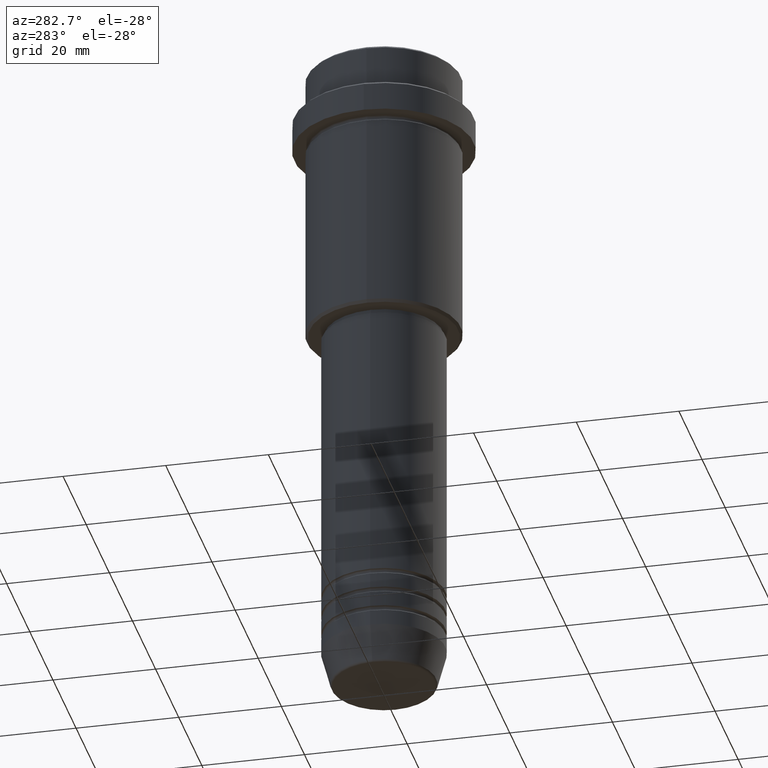
[diagram: clean part render]
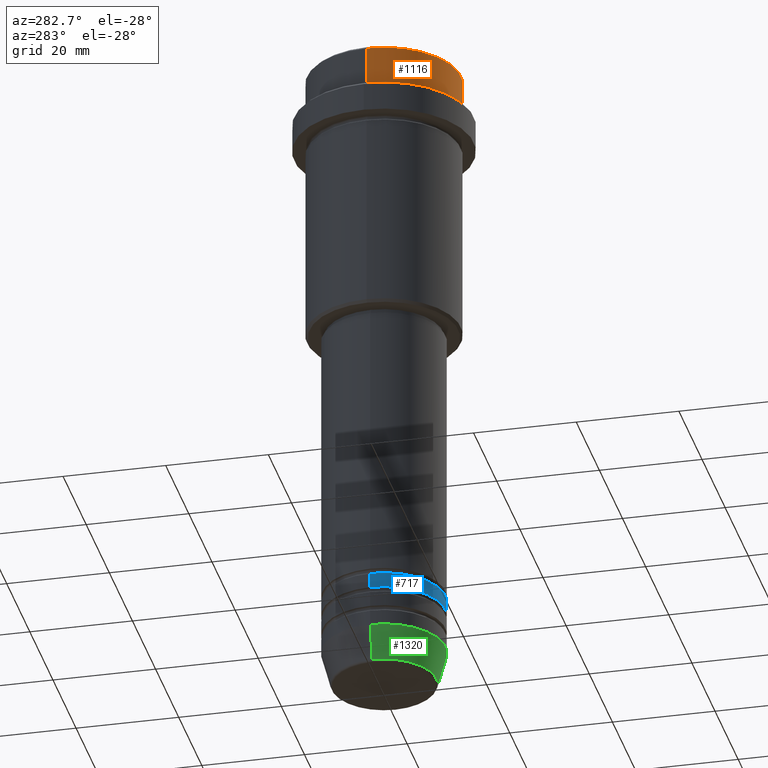
[diagram: same view with three faces highlighted in distinct colors, each labeled with its STEP entity id]
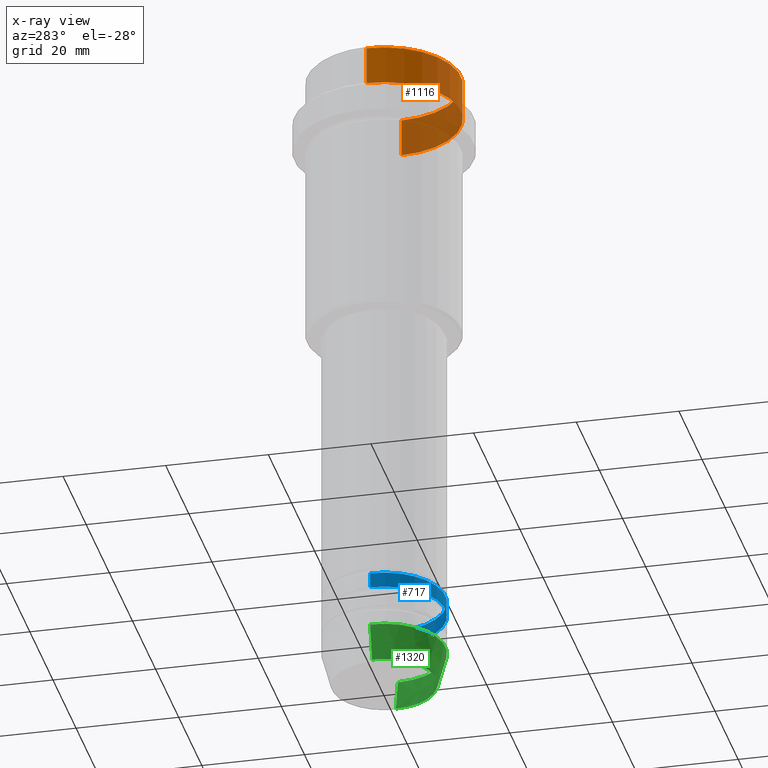
[diagram: x-ray of the same camera — body ghosted, the three highlighted faces saturated]
A machine part, auxiliary view with three faces highlighted in distinct colors.
The next image is the same camera in x-ray (body ghosted, the three faces saturated) — at least one of them is partly hidden behind the body in this view.
Their STEP definitions:

[orange] entity #1116 — the highlighted cylindrical surface (partial cylindrical patch) has radius 15 mm, axis along (-0, -0, 1).
#64 = DIRECTION ( 'NONE',  ( -0.000000000000000000, -0.000000000000000000, 1.000000000000000000 ) ) ;
#150 = ORIENTED_EDGE ( 'NONE', *, *, #645, .T. ) ;
#163 = CARTESIAN_POINT ( 'NONE',  ( -15.00000000000000000, 1.836970198721029589E-15, -7.999999999999998224 ) ) ;
#251 = CARTESIAN_POINT ( 'NONE',  ( 15.00000000000000000, 0.000000000000000000, -0.5000000000000386358 ) ) ;
#288 = DIRECTION ( 'NONE',  ( 1.000000000000000000, 0.000000000000000000, 0.000000000000000000 ) ) ;
#294 = VECTOR ( 'NONE', #64, 1000.000000000000000 ) ;
#297 = CARTESIAN_POINT ( 'NONE',  ( -15.00000000000000000, 1.836970198721029589E-15, 0.000000000000000000 ) ) ;
#307 = EDGE_CURVE ( 'NONE', #841, #737, #818, .T. ) ;
#315 = ORIENTED_EDGE ( 'NONE', *, *, #1353, .T. ) ;
#368 = EDGE_CURVE ( 'NONE', #841, #636, #949, .T. ) ;
#398 = AXIS2_PLACEMENT_3D ( 'NONE', #1254, #1260, #288 ) ;
#486 = VERTEX_POINT ( 'NONE', #251 ) ;
#554 = EDGE_LOOP ( 'NONE', ( #567, #665, #150, #315 ) ) ;
#567 = ORIENTED_EDGE ( 'NONE', *, *, #368, .F. ) ;
#636 = VERTEX_POINT ( 'NONE', #1160 ) ;
#645 = EDGE_CURVE ( 'NONE', #737, #486, #1314, .T. ) ;
#663 = DIRECTION ( 'NONE',  ( 1.000000000000000000, 0.000000000000000000, 0.000000000000000000 ) ) ;
#665 = ORIENTED_EDGE ( 'NONE', *, *, #307, .T. ) ;
#682 = CARTESIAN_POINT ( 'NONE',  ( 0.000000000000000000, 0.000000000000000000, -7.999999999999998224 ) ) ;
#688 = FACE_OUTER_BOUND ( 'NONE', #554, .T. ) ;
#689 = DIRECTION ( 'NONE',  ( -0.000000000000000000, -0.000000000000000000, 1.000000000000000000 ) ) ;
#737 = VERTEX_POINT ( 'NONE', #1021 ) ;
#763 = DIRECTION ( 'NONE',  ( -0.000000000000000000, -0.000000000000000000, 1.000000000000000000 ) ) ;
#818 = CIRCLE ( 'NONE', #903, 15.00000000000000000 ) ;
#841 = VERTEX_POINT ( 'NONE', #163 ) ;
#874 = CIRCLE ( 'NONE', #398, 15.00000000000000000 ) ;
#875 = DIRECTION ( 'NONE',  ( -0.000000000000000000, -0.000000000000000000, 1.000000000000000000 ) ) ;
#903 = AXIS2_PLACEMENT_3D ( 'NONE', #682, #689, #1117 ) ;
#949 = LINE ( 'NONE', #297, #294 ) ;
#1011 = VECTOR ( 'NONE', #875, 1000.000000000000000 ) ;
#1021 = CARTESIAN_POINT ( 'NONE',  ( 15.00000000000000000, 0.000000000000000000, -7.999999999999998224 ) ) ;
#1114 = CARTESIAN_POINT ( 'NONE',  ( 0.000000000000000000, 0.000000000000000000, 0.000000000000000000 ) ) ;
#1116 = ADVANCED_FACE ( 'NONE', ( #688 ), #1202, .T. ) ;
#1117 = DIRECTION ( 'NONE',  ( 1.000000000000000000, 0.000000000000000000, 0.000000000000000000 ) ) ;
#1160 = CARTESIAN_POINT ( 'NONE',  ( -15.00000000000000000, 1.836970198721029589E-15, -0.5000000000000386358 ) ) ;
#1202 = CYLINDRICAL_SURFACE ( 'NONE', #1382, 15.00000000000000000 ) ;
#1212 = CARTESIAN_POINT ( 'NONE',  ( 15.00000000000000000, 0.000000000000000000, 0.000000000000000000 ) ) ;
#1254 = CARTESIAN_POINT ( 'NONE',  ( 0.000000000000000000, 0.000000000000000000, -0.5000000000000386358 ) ) ;
#1260 = DIRECTION ( 'NONE',  ( 0.000000000000000000, 0.000000000000000000, -1.000000000000000000 ) ) ;
#1314 = LINE ( 'NONE', #1212, #1011 ) ;
#1353 = EDGE_CURVE ( 'NONE', #486, #636, #874, .T. ) ;
#1382 = AXIS2_PLACEMENT_3D ( 'NONE', #1114, #763, #663 ) ;

[blue] entity #717 — the highlighted cylindrical surface (partial cylindrical patch) has radius 12 mm, axis along (-0, -0, 1).
#58 = AXIS2_PLACEMENT_3D ( 'NONE', #777, #905, #63 ) ;
#63 = DIRECTION ( 'NONE',  ( 1.000000000000000000, 0.000000000000000000, 0.000000000000000000 ) ) ;
#165 = EDGE_CURVE ( 'NONE', #835, #268, #320, .T. ) ;
#194 = ORIENTED_EDGE ( 'NONE', *, *, #1401, .T. ) ;
#238 = ORIENTED_EDGE ( 'NONE', *, *, #1249, .F. ) ;
#261 = CARTESIAN_POINT ( 'NONE',  ( 12.00000000000000000, 0.000000000000000000, -111.9999999999998721 ) ) ;
#268 = VERTEX_POINT ( 'NONE', #261 ) ;
#320 = LINE ( 'NONE', #987, #481 ) ;
#328 = ORIENTED_EDGE ( 'NONE', *, *, #165, .T. ) ;
#333 = DIRECTION ( 'NONE',  ( -0.000000000000000000, -0.000000000000000000, 1.000000000000000000 ) ) ;
#340 = VERTEX_POINT ( 'NONE', #1050 ) ;
#373 = ORIENTED_EDGE ( 'NONE', *, *, #424, .F. ) ;
#406 = DIRECTION ( 'NONE',  ( -0.000000000000000000, -0.000000000000000000, 1.000000000000000000 ) ) ;
#416 = EDGE_LOOP ( 'NONE', ( #238, #194, #328, #373 ) ) ;
#424 = EDGE_CURVE ( 'NONE', #340, #268, #856, .T. ) ;
#449 = CYLINDRICAL_SURFACE ( 'NONE', #58, 12.00000000000000000 ) ;
#481 = VECTOR ( 'NONE', #1185, 1000.000000000000000 ) ;
#517 = CARTESIAN_POINT ( 'NONE',  ( -12.00000000000000000, 1.469576158976823947E-15, 0.000000000000000000 ) ) ;
#555 = FACE_OUTER_BOUND ( 'NONE', #416, .T. ) ;
#568 = AXIS2_PLACEMENT_3D ( 'NONE', #1378, #406, #1268 ) ;
#654 = AXIS2_PLACEMENT_3D ( 'NONE', #1071, #333, #664 ) ;
#664 = DIRECTION ( 'NONE',  ( 1.000000000000000000, 0.000000000000000000, 0.000000000000000000 ) ) ;
#717 = ADVANCED_FACE ( 'NONE', ( #555 ), #449, .T. ) ;
#725 = LINE ( 'NONE', #517, #741 ) ;
#741 = VECTOR ( 'NONE', #948, 1000.000000000000000 ) ;
#777 = CARTESIAN_POINT ( 'NONE',  ( 0.000000000000000000, 0.000000000000000000, 0.000000000000000000 ) ) ;
#835 = VERTEX_POINT ( 'NONE', #1151 ) ;
#856 = CIRCLE ( 'NONE', #568, 12.00000000000000000 ) ;
#905 = DIRECTION ( 'NONE',  ( -0.000000000000000000, -0.000000000000000000, 1.000000000000000000 ) ) ;
#948 = DIRECTION ( 'NONE',  ( -0.000000000000000000, -0.000000000000000000, 1.000000000000000000 ) ) ;
#987 = CARTESIAN_POINT ( 'NONE',  ( 12.00000000000000000, 0.000000000000000000, 0.000000000000000000 ) ) ;
#1050 = CARTESIAN_POINT ( 'NONE',  ( -12.00000000000000000, 1.469576158976823947E-15, -111.9999999999998721 ) ) ;
#1071 = CARTESIAN_POINT ( 'NONE',  ( 0.000000000000000000, 0.000000000000000000, -114.9999999999998863 ) ) ;
#1151 = CARTESIAN_POINT ( 'NONE',  ( 12.00000000000000000, 0.000000000000000000, -114.9999999999998863 ) ) ;
#1163 = VERTEX_POINT ( 'NONE', #1287 ) ;
#1185 = DIRECTION ( 'NONE',  ( -0.000000000000000000, -0.000000000000000000, 1.000000000000000000 ) ) ;
#1216 = CIRCLE ( 'NONE', #654, 12.00000000000000000 ) ;
#1249 = EDGE_CURVE ( 'NONE', #1163, #340, #725, .T. ) ;
#1268 = DIRECTION ( 'NONE',  ( 1.000000000000000000, 0.000000000000000000, 0.000000000000000000 ) ) ;
#1287 = CARTESIAN_POINT ( 'NONE',  ( -12.00000000000000000, 1.469576158976823947E-15, -114.9999999999998863 ) ) ;
#1378 = CARTESIAN_POINT ( 'NONE',  ( 0.000000000000000000, 0.000000000000000000, -111.9999999999998721 ) ) ;
#1401 = EDGE_CURVE ( 'NONE', #1163, #835, #1216, .T. ) ;

[green] entity #1320 — the highlighted conical surface has half-angle 15 deg.
#1 = DIRECTION ( 'NONE',  ( -0.000000000000000000, -0.000000000000000000, 1.000000000000000000 ) ) ;
#51 = VERTEX_POINT ( 'NONE', #957 ) ;
#143 = DIRECTION ( 'NONE',  ( 1.000000000000000000, 0.000000000000000000, 0.000000000000000000 ) ) ;
#218 = ORIENTED_EDGE ( 'NONE', *, *, #466, .T. ) ;
#314 = CARTESIAN_POINT ( 'NONE',  ( 0.000000000000000000, 0.000000000000000000, -129.6294095225512422 ) ) ;
#319 = CARTESIAN_POINT ( 'NONE',  ( 10.22365507213718949, 0.000000000000000000, -129.6294095225512422 ) ) ;
#361 = DIRECTION ( 'NONE',  ( -0.000000000000000000, -0.000000000000000000, 1.000000000000000000 ) ) ;
#439 = VERTEX_POINT ( 'NONE', #1235 ) ;
#466 = EDGE_CURVE ( 'NONE', #884, #439, #1128, .T. ) ;
#472 = FACE_OUTER_BOUND ( 'NONE', #1258, .T. ) ;
#503 = DIRECTION ( 'NONE',  ( 0.2588190451025213501, 0.000000000000000000, 0.9659258262890680902 ) ) ;
#535 = DIRECTION ( 'NONE',  ( 1.000000000000000000, 0.000000000000000000, 0.000000000000000000 ) ) ;
#629 = VECTOR ( 'NONE', #503, 1000.000000000000000 ) ;
#633 = CARTESIAN_POINT ( 'NONE',  ( -12.00000000000000000, 1.469576158976823947E-15, -123.0000000000000000 ) ) ;
#652 = CARTESIAN_POINT ( 'NONE',  ( 0.000000000000000000, 0.000000000000000000, -123.0000000000000000 ) ) ;
#674 = AXIS2_PLACEMENT_3D ( 'NONE', #652, #361, #143 ) ;
#767 = DIRECTION ( 'NONE',  ( 1.000000000000000000, 0.000000000000000000, 0.000000000000000000 ) ) ;
#820 = CARTESIAN_POINT ( 'NONE',  ( 12.00000000000000000, 0.000000000000000000, -123.0000000000000000 ) ) ;
#884 = VERTEX_POINT ( 'NONE', #319 ) ;
#893 = CIRCLE ( 'NONE', #1292, 10.22365507213718949 ) ;
#896 = CONICAL_SURFACE ( 'NONE', #674, 12.00000000000000000, 0.2617993877991500740 ) ;
#901 = ORIENTED_EDGE ( 'NONE', *, *, #1013, .F. ) ;
#916 = CIRCLE ( 'NONE', #1141, 12.00000000000000000 ) ;
#921 = DIRECTION ( 'NONE',  ( -0.2588190451025213501, 3.169619151431772337E-17, 0.9659258262890680902 ) ) ;
#957 = CARTESIAN_POINT ( 'NONE',  ( -10.22365507213718949, 1.360806402472382744E-15, -129.6294095225512422 ) ) ;
#982 = EDGE_CURVE ( 'NONE', #51, #884, #893, .T. ) ;
#999 = EDGE_CURVE ( 'NONE', #51, #1181, #1309, .T. ) ;
#1013 = EDGE_CURVE ( 'NONE', #1181, #439, #916, .T. ) ;
#1055 = ORIENTED_EDGE ( 'NONE', *, *, #982, .T. ) ;
#1065 = CARTESIAN_POINT ( 'NONE',  ( -12.00000000000000000, 1.469576158976823947E-15, -123.0000000000000000 ) ) ;
#1077 = DIRECTION ( 'NONE',  ( -0.000000000000000000, -0.000000000000000000, 1.000000000000000000 ) ) ;
#1085 = ORIENTED_EDGE ( 'NONE', *, *, #999, .F. ) ;
#1121 = VECTOR ( 'NONE', #921, 1000.000000000000000 ) ;
#1128 = LINE ( 'NONE', #820, #629 ) ;
#1141 = AXIS2_PLACEMENT_3D ( 'NONE', #1176, #1, #535 ) ;
#1176 = CARTESIAN_POINT ( 'NONE',  ( 0.000000000000000000, 0.000000000000000000, -123.0000000000000000 ) ) ;
#1181 = VERTEX_POINT ( 'NONE', #1065 ) ;
#1235 = CARTESIAN_POINT ( 'NONE',  ( 12.00000000000000000, 0.000000000000000000, -123.0000000000000000 ) ) ;
#1258 = EDGE_LOOP ( 'NONE', ( #1085, #1055, #218, #901 ) ) ;
#1292 = AXIS2_PLACEMENT_3D ( 'NONE', #314, #1077, #767 ) ;
#1309 = LINE ( 'NONE', #633, #1121 ) ;
#1320 = ADVANCED_FACE ( 'NONE', ( #472 ), #896, .T. ) ;